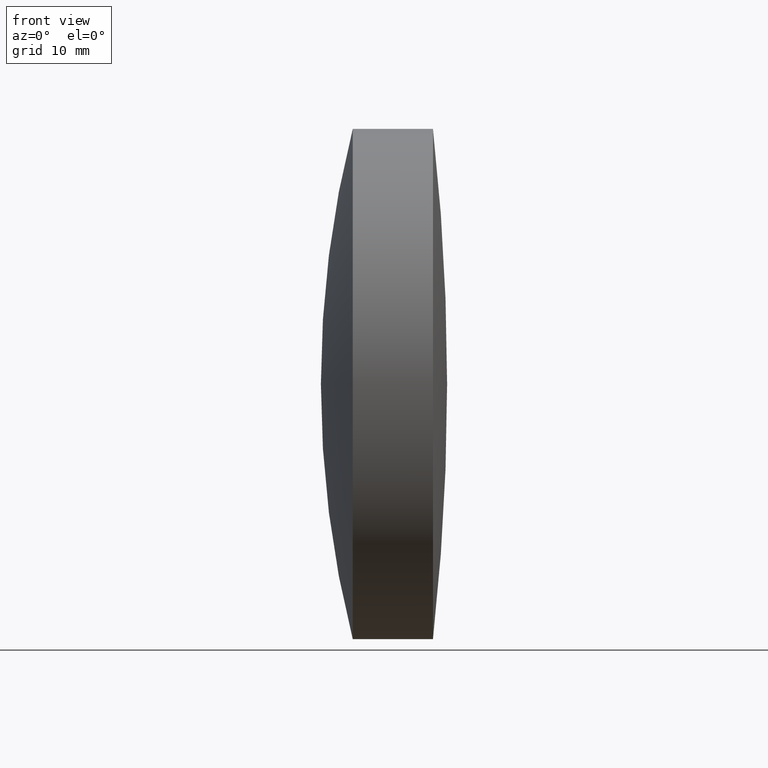
[diagram: clean part render]
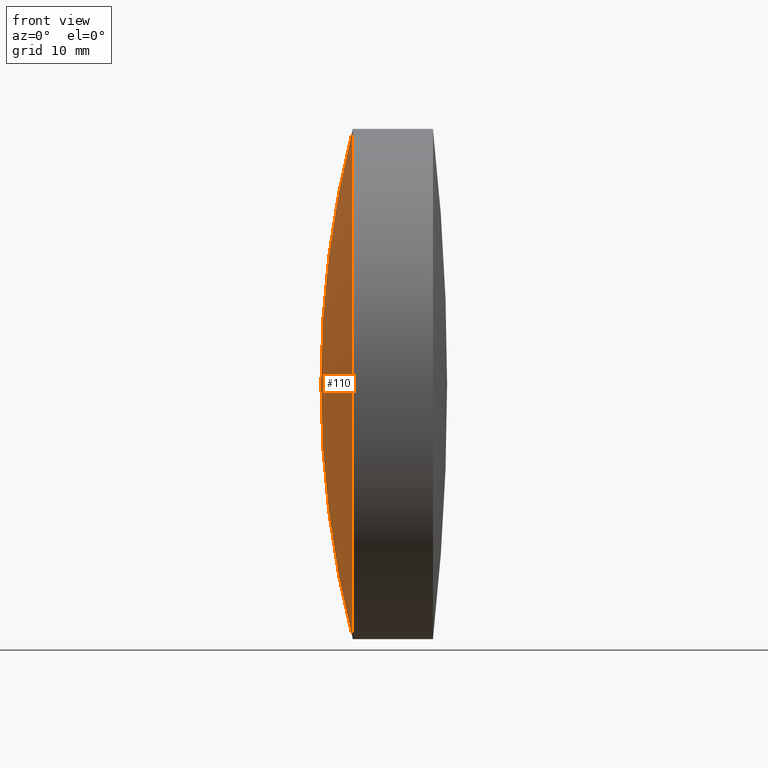
[diagram: same view with one face highlighted and labeled with its STEP entity id]
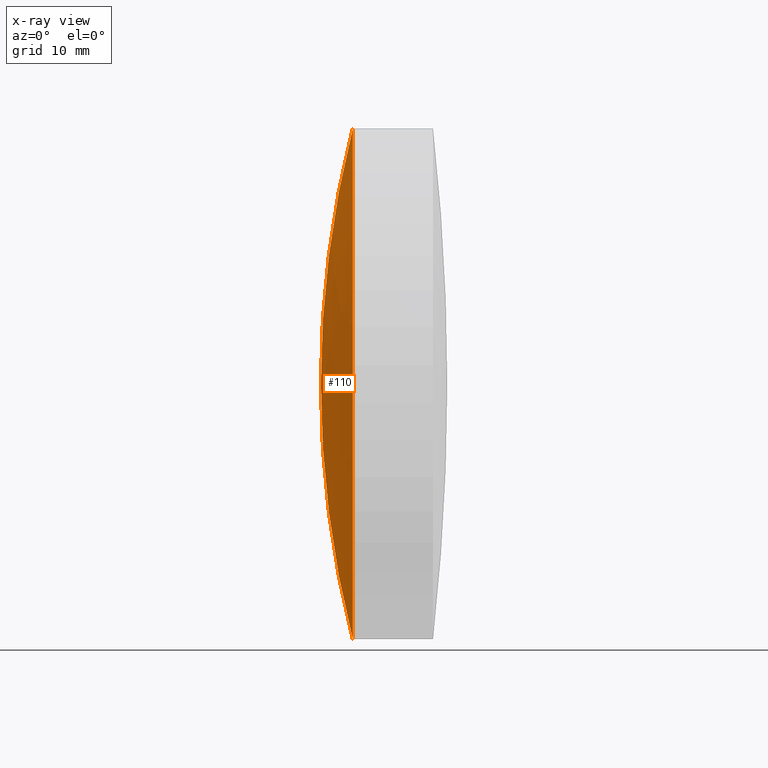
[diagram: x-ray of the same camera — body ghosted, the highlighted face saturated]
A machine part, front view. The second image highlights one B-rep face of the part: STEP entity #110.
The next image is the same camera in x-ray: the body ghosted, the highlighted face saturated — about 0% of this face is hidden behind the body in this view.
In plain terms, the highlighted spherical surface has radius 101.707 mm.
Its self-contained STEP definition (entity closure, byte-faithful):
#7 = DIRECTION ( 'NONE',  ( -0.0000000000000000000, 1.000000000000000000, 1.224646799147353200E-016 ) ) ;
#9 = EDGE_CURVE ( 'NONE', #106, #64, #21, .T. ) ;
#11 = CARTESIAN_POINT ( 'NONE',  ( 328.8517151953939200, 0.0000000000000000000, -8.224809557768397600E-014 ) ) ;
#16 = EDGE_CURVE ( 'NONE', #106, #280, #146, .T. ) ;
#19 = ORIENTED_EDGE ( 'NONE', *, *, #9, .F. ) ;
#21 = CIRCLE ( 'NONE', #259, 101.7070000000000400 ) ;
#64 = VERTEX_POINT ( 'NONE', #73 ) ;
#68 = DIRECTION ( 'NONE',  ( -1.000000000000000000, -0.0000000000000000000, -0.0000000000000000000 ) ) ;
#73 = CARTESIAN_POINT ( 'NONE',  ( 227.1447151953938700, 0.0000000000000000000, -7.602033797763998700E-014 ) ) ;
#96 = EDGE_CURVE ( 'NONE', #280, #64, #199, .T. ) ;
#106 = VERTEX_POINT ( 'NONE', #188 ) ;
#110 = ADVANCED_FACE ( 'NONE', ( #278 ), #127, .T. ) ;
#124 = CARTESIAN_POINT ( 'NONE',  ( 230.2651347242161800, 0.0000000000000000000, 24.99999999999996800 ) ) ;
#127 = SPHERICAL_SURFACE ( 'NONE', #330, 101.7070000000000400 ) ;
#132 = CARTESIAN_POINT ( 'NONE',  ( 328.8517151953939200, 0.0000000000000000000, -8.224809557768397600E-014 ) ) ;
#142 = DIRECTION ( 'NONE',  ( 0.0000000000000000000, 1.000000000000000000, 0.0000000000000000000 ) ) ;
#146 = CIRCLE ( 'NONE', #164, 24.99999999999997500 ) ;
#164 = AXIS2_PLACEMENT_3D ( 'NONE', #347, #68, #204 ) ;
#188 = CARTESIAN_POINT ( 'NONE',  ( 230.2651347242161800, 3.061616997868379100E-015, -25.00000000000005000 ) ) ;
#199 = CIRCLE ( 'NONE', #273, 101.7070000000000400 ) ;
#204 = DIRECTION ( 'NONE',  ( 0.0000000000000000000, 0.0000000000000000000, 1.000000000000000000 ) ) ;
#225 = CARTESIAN_POINT ( 'NONE',  ( 328.8517151953939200, 0.0000000000000000000, -8.224809557768397600E-014 ) ) ;
#252 = DIRECTION ( 'NONE',  ( 0.0000000000000000000, -1.224646799147353200E-016, 1.000000000000000000 ) ) ;
#259 = AXIS2_PLACEMENT_3D ( 'NONE', #225, #7, #252 ) ;
#261 = DIRECTION ( 'NONE',  ( 0.0000000000000000000, 0.0000000000000000000, -1.000000000000000000 ) ) ;
#273 = AXIS2_PLACEMENT_3D ( 'NONE', #132, #297, #261 ) ;
#278 = FACE_OUTER_BOUND ( 'NONE', #288, .T. ) ;
#280 = VERTEX_POINT ( 'NONE', #124 ) ;
#288 = EDGE_LOOP ( 'NONE', ( #19, #346, #331 ) ) ;
#297 = DIRECTION ( 'NONE',  ( 0.0000000000000000000, -1.000000000000000000, 0.0000000000000000000 ) ) ;
#321 = DIRECTION ( 'NONE',  ( 0.0000000000000000000, 0.0000000000000000000, 1.000000000000000000 ) ) ;
#330 = AXIS2_PLACEMENT_3D ( 'NONE', #11, #142, #321 ) ;
#331 = ORIENTED_EDGE ( 'NONE', *, *, #96, .T. ) ;
#346 = ORIENTED_EDGE ( 'NONE', *, *, #16, .T. ) ;
#347 = CARTESIAN_POINT ( 'NONE',  ( 230.2651347242161800, 0.0000000000000000000, 0.0000000000000000000 ) ) ;